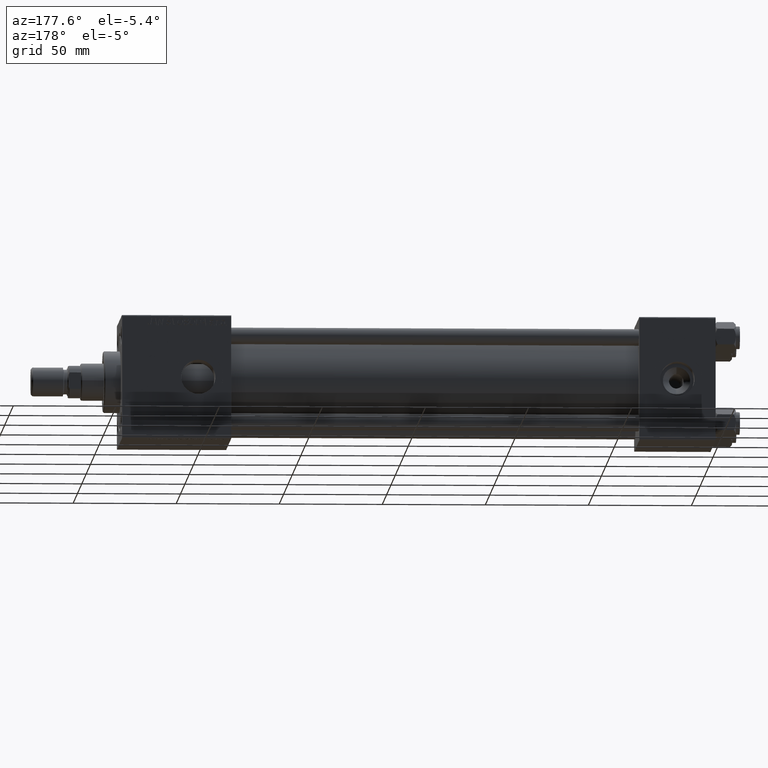
[diagram: clean part render]
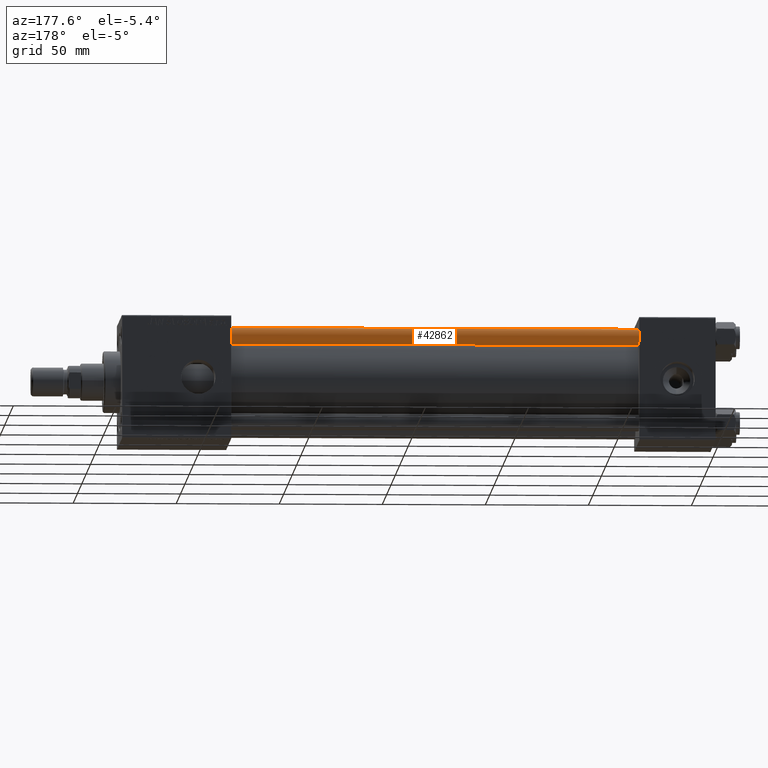
[diagram: same view with one face highlighted and labeled with its STEP entity id]
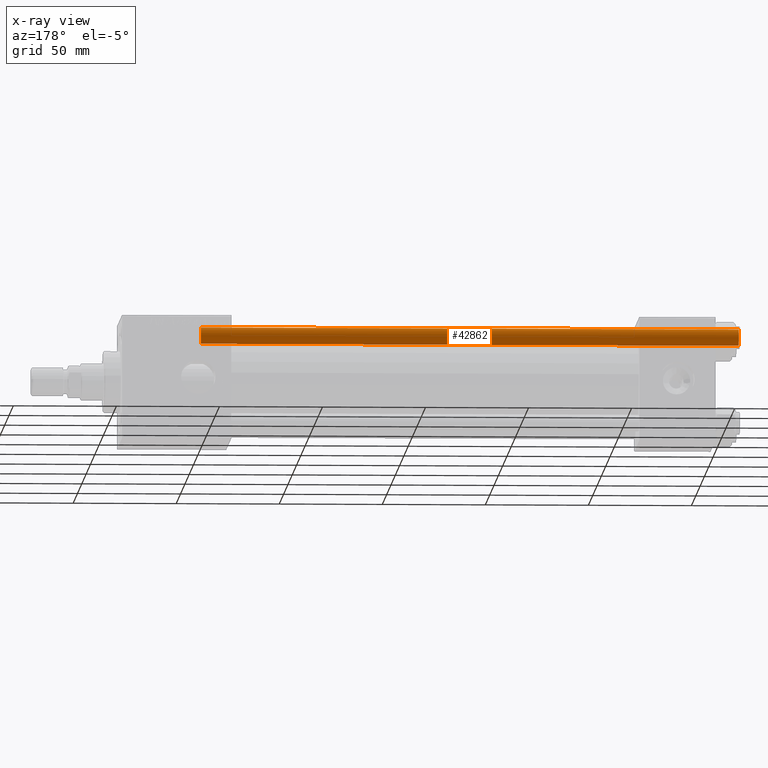
[diagram: x-ray of the same camera — body ghosted, the highlighted face saturated]
A machine part, auxiliary view. The second image highlights one B-rep face of the part: STEP entity #42862.
The next image is the same camera in x-ray: the body ghosted, the highlighted face saturated — about 0% of this face is hidden behind the body in this view.
In plain terms, the highlighted cylindrical surface (edge-blend (fillet) strip) has radius 4 mm, axis along (-1, 0, 0).
Its self-contained STEP definition (entity closure, byte-faithful):
#262 = CIRCLE ( 'NONE', #13114, 4.000000000000000000 ) ;
#1209 = DIRECTION ( 'NONE',  ( 1.000000000000000000, 0.000000000000000000, 0.000000000000000000 ) ) ;
#1577 = DIRECTION ( 'NONE',  ( 0.000000000000000000, 0.000000000000000000, -1.000000000000000000 ) ) ;
#1587 = CARTESIAN_POINT ( 'NONE',  ( 4.000000000000000000, 4.898587196589412829E-16, 261.5000000000000000 ) ) ;
#2865 = DIRECTION ( 'NONE',  ( -0.000000000000000000, -0.000000000000000000, -1.000000000000000000 ) ) ;
#3446 = CARTESIAN_POINT ( 'NONE',  ( 4.000000000000000000, 4.898587196589412829E-16, 0.5000000000000559552 ) ) ;
#3820 = ORIENTED_EDGE ( 'NONE', *, *, #43164, .F. ) ;
#4349 = EDGE_CURVE ( 'NONE', #42524, #27594, #262, .T. ) ;
#6884 = CARTESIAN_POINT ( 'NONE',  ( 0.000000000000000000, 0.000000000000000000, 262.0000000000000000 ) ) ;
#7474 = CARTESIAN_POINT ( 'NONE',  ( -4.000000000000000000, 0.000000000000000000, 261.5000000000000000 ) ) ;
#8526 = AXIS2_PLACEMENT_3D ( 'NONE', #21566, #17551, #1209 ) ;
#9033 = ORIENTED_EDGE ( 'NONE', *, *, #22699, .T. ) ;
#10642 = DIRECTION ( 'NONE',  ( -1.000000000000000000, 0.000000000000000000, 0.000000000000000000 ) ) ;
#13114 = AXIS2_PLACEMENT_3D ( 'NONE', #42514, #1577, #25683 ) ;
#13619 = DIRECTION ( 'NONE',  ( -0.000000000000000000, -0.000000000000000000, -1.000000000000000000 ) ) ;
#15553 = VERTEX_POINT ( 'NONE', #31138 ) ;
#17551 = DIRECTION ( 'NONE',  ( -0.000000000000000000, -0.000000000000000000, 1.000000000000000000 ) ) ;
#19550 = VECTOR ( 'NONE', #13619, 1000.000000000000000 ) ;
#19674 = EDGE_CURVE ( 'NONE', #27594, #47432, #21647, .T. ) ;
#19728 = CYLINDRICAL_SURFACE ( 'NONE', #40370, 4.000000000000000000 ) ;
#21566 = CARTESIAN_POINT ( 'NONE',  ( 0.000000000000000000, 0.000000000000000000, 0.5000000000000559552 ) ) ;
#21647 = LINE ( 'NONE', #37941, #19550 ) ;
#22521 = ORIENTED_EDGE ( 'NONE', *, *, #19674, .T. ) ;
#22699 = EDGE_CURVE ( 'NONE', #47432, #15553, #48660, .T. ) ;
#25683 = DIRECTION ( 'NONE',  ( 1.000000000000000000, 0.000000000000000000, 0.000000000000000000 ) ) ;
#27594 = VERTEX_POINT ( 'NONE', #1587 ) ;
#31138 = CARTESIAN_POINT ( 'NONE',  ( -4.000000000000000000, 0.000000000000000000, 0.5000000000000559552 ) ) ;
#36973 = VECTOR ( 'NONE', #40493, 1000.000000000000000 ) ;
#37941 = CARTESIAN_POINT ( 'NONE',  ( 4.000000000000000000, 4.898587196589412829E-16, 262.0000000000000000 ) ) ;
#38101 = ORIENTED_EDGE ( 'NONE', *, *, #4349, .T. ) ;
#40370 = AXIS2_PLACEMENT_3D ( 'NONE', #6884, #2865, #10642 ) ;
#40493 = DIRECTION ( 'NONE',  ( -0.000000000000000000, -0.000000000000000000, -1.000000000000000000 ) ) ;
#42514 = CARTESIAN_POINT ( 'NONE',  ( 0.000000000000000000, 0.000000000000000000, 261.5000000000000000 ) ) ;
#42524 = VERTEX_POINT ( 'NONE', #7474 ) ;
#42862 = ADVANCED_FACE ( 'NONE', ( #47813 ), #19728, .T. ) ;
#43164 = EDGE_CURVE ( 'NONE', #42524, #15553, #48798, .T. ) ;
#47432 = VERTEX_POINT ( 'NONE', #3446 ) ;
#47813 = FACE_OUTER_BOUND ( 'NONE', #49228, .T. ) ;
#48660 = CIRCLE ( 'NONE', #8526, 4.000000000000000000 ) ;
#48798 = LINE ( 'NONE', #49335, #36973 ) ;
#49228 = EDGE_LOOP ( 'NONE', ( #38101, #22521, #9033, #3820 ) ) ;
#49335 = CARTESIAN_POINT ( 'NONE',  ( -4.000000000000000000, 0.000000000000000000, 262.0000000000000000 ) ) ;